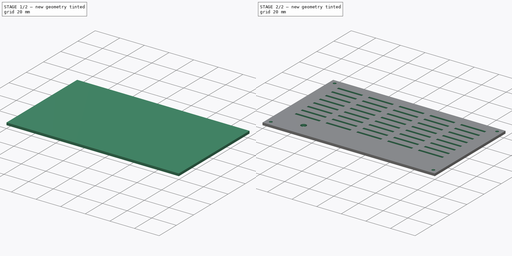
[diagram: build sequence overview — one tinted view per stage of 2, left to right]
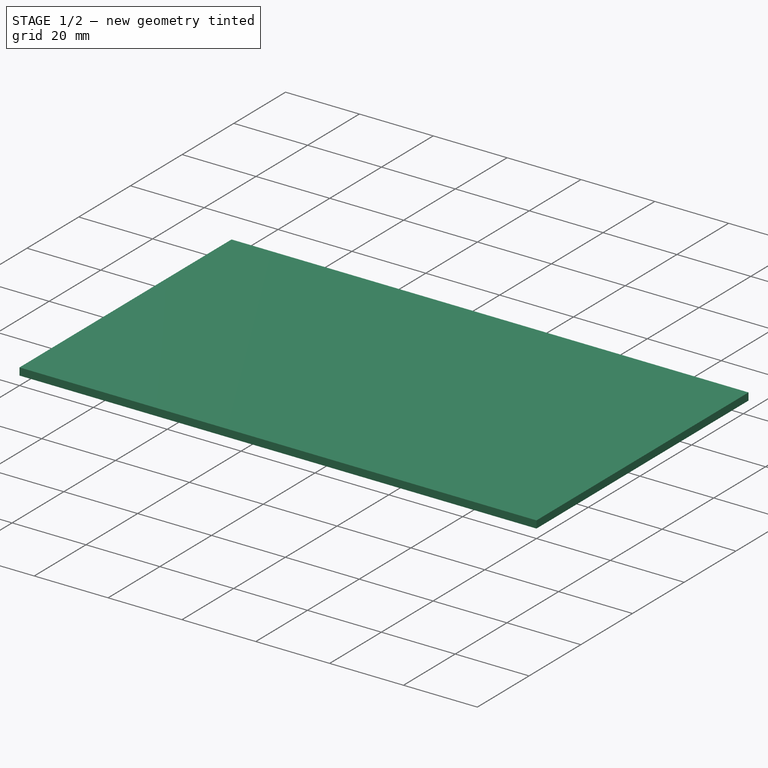
[diagram: stage 1 of 2 — iso view after this stage's code; geometry added in this stage tinted green]
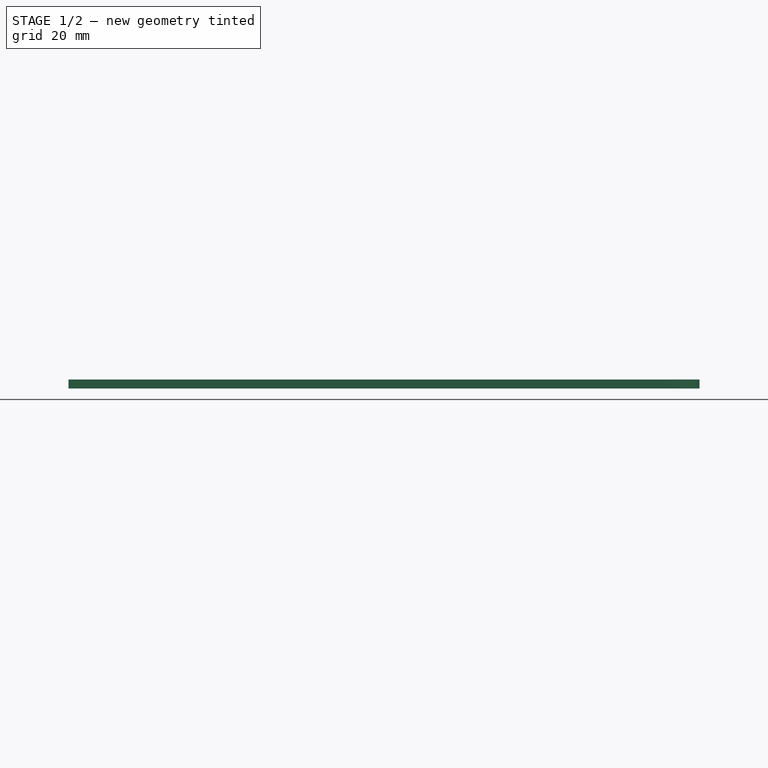
[diagram: stage 1 of 2 — front view after this stage's code; geometry added in this stage tinted green]
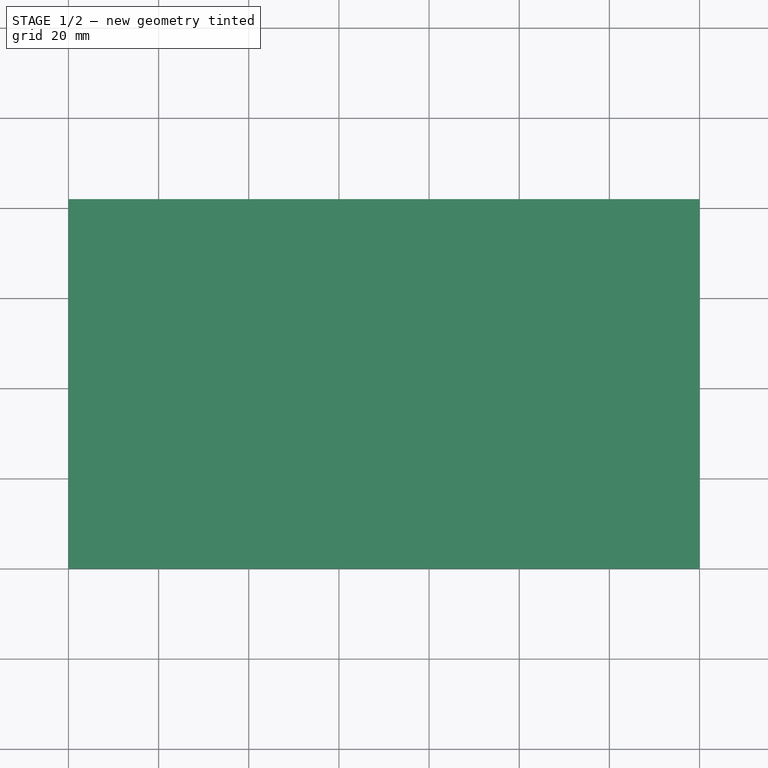
[diagram: stage 1 of 2 — top view after this stage's code; geometry added in this stage tinted green]
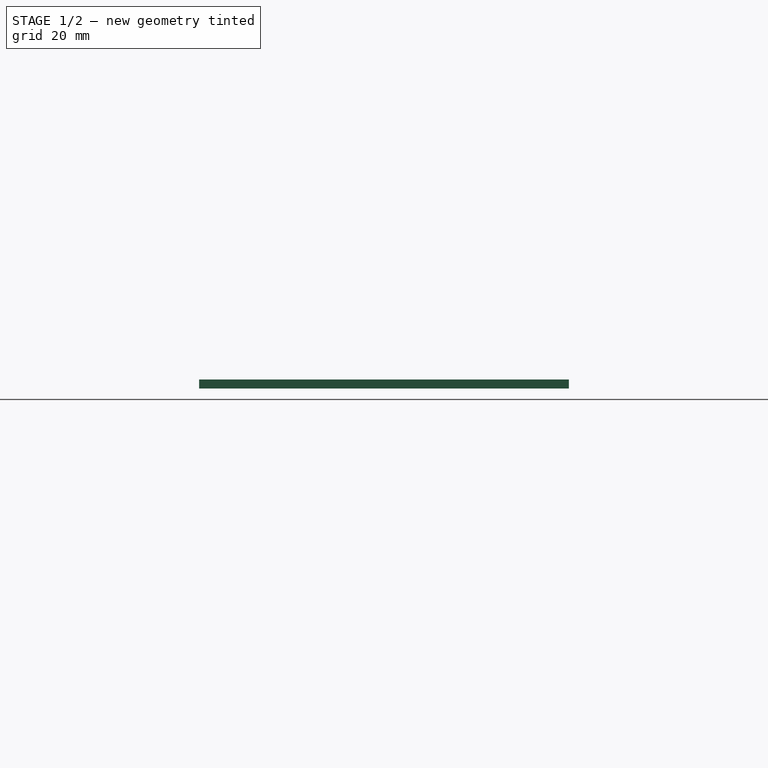
[diagram: stage 1 of 2 — right view after this stage's code; geometry added in this stage tinted green]
FCSTD DOCUMENT  (FreeCAD 0.19R24366 (Git))
Label: cover
License: All rights reserved
LicenseURL: http://en.wikipedia.org/wiki/All_rights_reserved
objects: Sketcher::SketchObject×2, PartDesign::Pad×1, PartDesign::Pocket×1, PartDesign::Body×1
note: 7 computed .brp shape members not serialized (recipe doc carries the construction recipe); baked Part::Feature solids carry a one-line shape summary decoded from their .brp

FEATURE [Sketcher::SketchObject] Sketch
  FullyConstrained = true
  MapMode = 5
  Support = -> [XY_Plane]
  sketch-geometry (4):
    g0: LineSegment StartX=0 StartY=0 StartZ=0 EndX=140 EndY=0 EndZ=0
    g1: LineSegment StartX=140 StartY=0 StartZ=0 EndX=140 EndY=82 EndZ=0
    g2: LineSegment StartX=140 StartY=82 StartZ=0 EndX=0 EndY=82 EndZ=0
    g3: LineSegment StartX=0 StartY=82 StartZ=0 EndX=0 EndY=0 EndZ=0
  constraints (11):
    c: Coincident(g0,g1)
    c: Coincident(g1,g2)
    c: Coincident(g2,g3)
    c: Coincident(g3,g0)
    c: Horizontal(g0)
    c: Horizontal(g2)
    c: Vertical(g1)
    c: Vertical(g3)
    c: Coincident(g0,g-1)
    c: DistanceX(g2,g2) = 140
    c: DistanceY(g3,g3) = 82
FEATURE [PartDesign::Pad] Pad
  Direction = (1,1,1)
  Length = 2
  Length2 = 100
  Profile = -> Sketch
  Type = 0
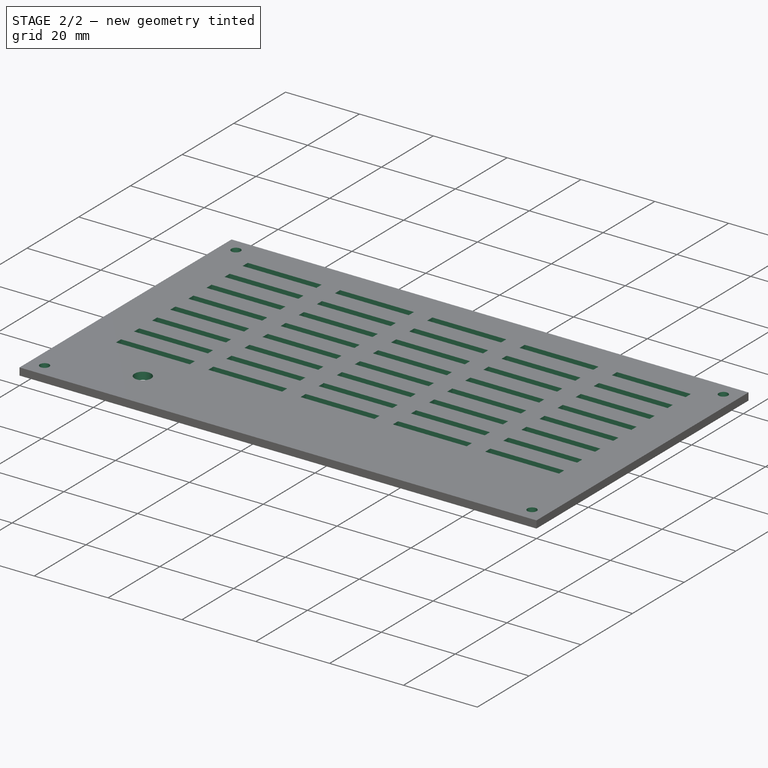
[diagram: stage 2 of 2 — iso view after this stage's code; geometry added in this stage tinted green]
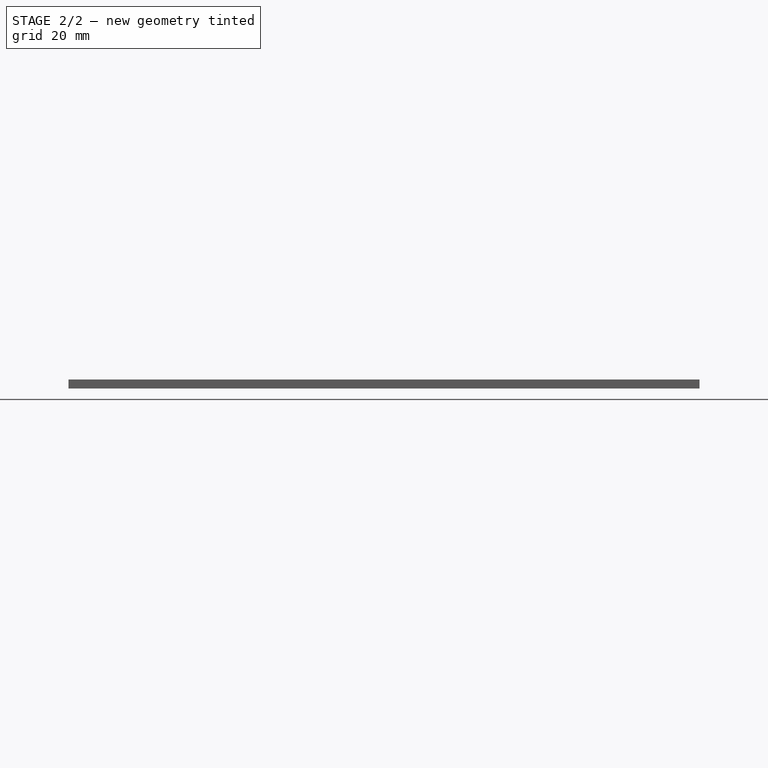
[diagram: stage 2 of 2 — front view after this stage's code; geometry added in this stage tinted green]
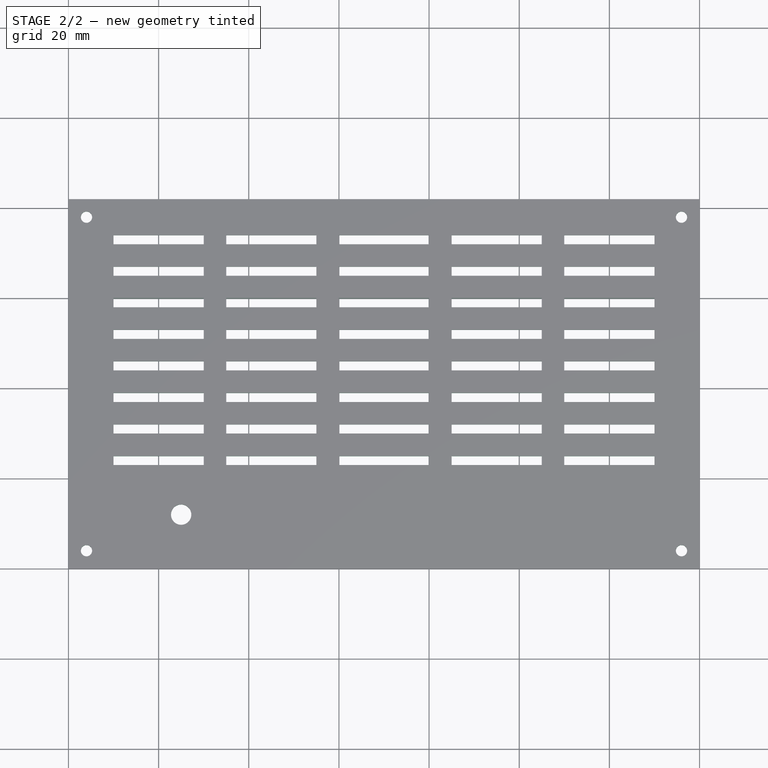
[diagram: stage 2 of 2 — top view after this stage's code; geometry added in this stage tinted green]
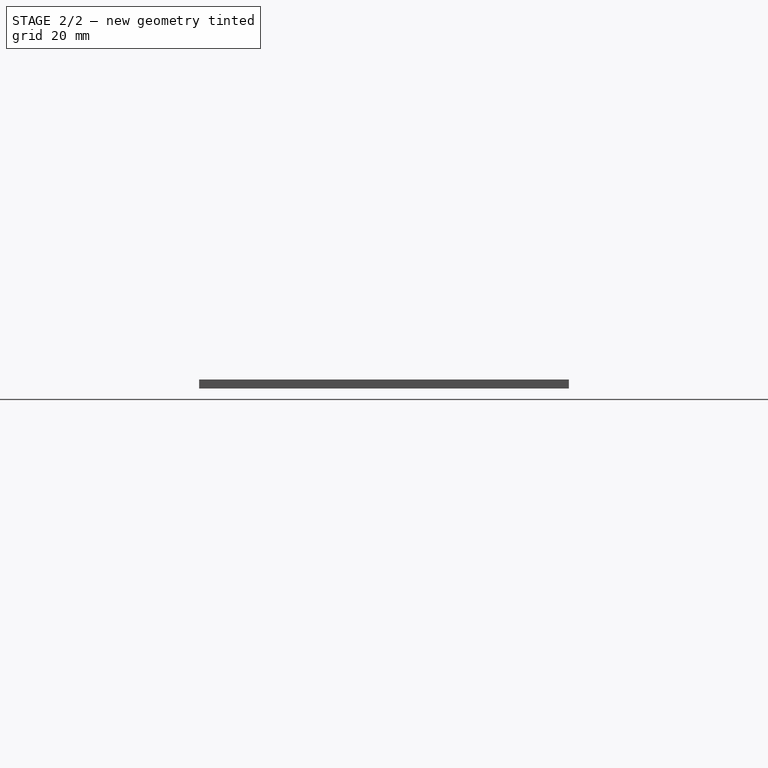
[diagram: stage 2 of 2 — right view after this stage's code; geometry added in this stage tinted green]
FEATURE [Sketcher::SketchObject] Sketch001
  ExternalGeometry = -> [Pad]
  FullyConstrained = true
  MapMode = 5
  Placement = pos=(0,0,2) rot=(0,0,1;0rad)
  Support = -> [Pad]
  sketch-geometry (204):
    g0: Circle CenterX=4 CenterY=78 CenterZ=0 NormalX=0 NormalY=0 NormalZ=1 AngleXU=0 Radius=1.25
    g1: Circle CenterX=136 CenterY=78 CenterZ=0 NormalX=0 NormalY=0 NormalZ=1 AngleXU=0 Radius=1.25
    g2: Circle CenterX=136 CenterY=4 CenterZ=0 NormalX=0 NormalY=0 NormalZ=1 AngleXU=0 Radius=1.25
    g3: Circle CenterX=4 CenterY=4 CenterZ=0 NormalX=0 NormalY=0 NormalZ=1 AngleXU=0 Radius=1.25
    g4: Circle CenterX=25 CenterY=12 CenterZ=0 NormalX=0 NormalY=0 NormalZ=1 AngleXU=0 Radius=2.25
    g5: LineSegment StartX=10 StartY=74 StartZ=0 EndX=30 EndY=74 EndZ=0
    g6: LineSegment StartX=30 StartY=74 StartZ=0 EndX=30 EndY=72 EndZ=0
    g7: LineSegment StartX=30 StartY=72 StartZ=0 EndX=10 EndY=72 EndZ=0
    g8: LineSegment StartX=10 StartY=72 StartZ=0 EndX=10 EndY=74 EndZ=0
    g9: LineSegment StartX=35 StartY=74 StartZ=0 EndX=55 EndY=74 EndZ=0
    g10: LineSegment StartX=55 StartY=74 StartZ=0 EndX=55 EndY=72 EndZ=0
    g11: LineSegment StartX=55 StartY=72 StartZ=0 EndX=35 EndY=72 EndZ=0
    g12: LineSegment StartX=35 StartY=72 StartZ=0 EndX=35 EndY=74 EndZ=0
    g13: LineSegment StartX=10 StartY=74 StartZ=0 EndX=35 EndY=74 EndZ=0
    g14: LineSegment StartX=60 StartY=74 StartZ=0 EndX=80 EndY=74 EndZ=0
    g15: LineSegment StartX=80 StartY=74 StartZ=0 EndX=80 EndY=72 EndZ=0
    g16: LineSegment StartX=80 StartY=72 StartZ=0 EndX=60 EndY=72 EndZ=0
    g17: LineSegment StartX=60 StartY=72 StartZ=0 EndX=60 EndY=74 EndZ=0
    g18: LineSegment StartX=35 StartY=74 StartZ=0 EndX=60 EndY=74 EndZ=0
    g19: LineSegment StartX=85 StartY=74 StartZ=0 EndX=105 EndY=74 EndZ=0
    g20: LineSegment StartX=105 StartY=74 StartZ=0 EndX=105 EndY=72 EndZ=0
    g21: LineSegment StartX=105 StartY=72 StartZ=0 EndX=85 EndY=72 EndZ=0
    g22: LineSegment StartX=85 StartY=72 StartZ=0 EndX=85 EndY=74 EndZ=0
    g23: LineSegment StartX=60 StartY=74 StartZ=0 EndX=85 EndY=74 EndZ=0
    g24: LineSegment StartX=110 StartY=74 StartZ=0 EndX=130 EndY=74 EndZ=0
    g25: LineSegment StartX=130 StartY=74 StartZ=0 EndX=130 EndY=72 EndZ=0
    g26: LineSegment StartX=130 StartY=72 StartZ=0 EndX=110 EndY=72 EndZ=0
    g27: LineSegment StartX=110 StartY=72 StartZ=0 EndX=110 EndY=74 EndZ=0
    g28: LineSegment StartX=85 StartY=74 StartZ=0 EndX=110 EndY=74 EndZ=0
    g29: LineSegment StartX=10 StartY=67 StartZ=0 EndX=30 EndY=67 EndZ=0
    g30: LineSegment StartX=30 StartY=67 StartZ=0 EndX=30 EndY=65 EndZ=0
    g31: LineSegment StartX=30 StartY=65 StartZ=0 EndX=10 EndY=65 EndZ=0
    g32: LineSegment StartX=10 StartY=65 StartZ=0 EndX=10 EndY=67 EndZ=0
    g33: LineSegment StartX=10 StartY=74 StartZ=0 EndX=10 EndY=67 EndZ=0
    g34: LineSegment StartX=35 StartY=67 StartZ=0 EndX=55 EndY=67 EndZ=0
    g35: LineSegment StartX=55 StartY=67 StartZ=0 EndX=55 EndY=65 EndZ=0
    g36: LineSegment StartX=55 StartY=65 StartZ=0 EndX=35 EndY=65 EndZ=0
    g37: LineSegment StartX=35 StartY=65 StartZ=0 EndX=35 EndY=67 EndZ=0
    g38: LineSegment StartX=10 StartY=67 StartZ=0 EndX=35 EndY=67 EndZ=0
    g39: LineSegment StartX=60 StartY=67 StartZ=0 EndX=80 EndY=67 EndZ=0
    g40: LineSegment StartX=80 StartY=67 StartZ=0 EndX=80 EndY=65 EndZ=0
    g41: LineSegment StartX=80 StartY=65 StartZ=0 EndX=60 EndY=65 EndZ=0
    g42: LineSegment StartX=60 StartY=65 StartZ=0 EndX=60 EndY=67 EndZ=0
    g43: LineSegment StartX=35 StartY=67 StartZ=0 EndX=60 EndY=67 EndZ=0
    g44: LineSegment StartX=85 StartY=67 StartZ=0 EndX=105 EndY=67 EndZ=0
    g45: LineSegment StartX=105 StartY=67 StartZ=0 EndX=105 EndY=65 EndZ=0
    g46: LineSegment StartX=105 StartY=65 StartZ=0 EndX=85 EndY=65 EndZ=0
    g47: LineSegment StartX=85 StartY=65 StartZ=0 EndX=85 EndY=67 EndZ=0
    g48: LineSegment StartX=60 StartY=67 StartZ=0 EndX=85 EndY=67 EndZ=0
    g49: LineSegment StartX=110 StartY=67 StartZ=0 EndX=130 EndY=67 EndZ=0
    g50: LineSegment StartX=130 StartY=67 StartZ=0 EndX=130 EndY=65 EndZ=0
    g51: LineSegment StartX=130 StartY=65 StartZ=0 EndX=110 EndY=65 EndZ=0
    g52: LineSegment StartX=110 StartY=65 StartZ=0 EndX=110 EndY=67 EndZ=0
    g53: LineSegment StartX=85 StartY=67 StartZ=0 EndX=110 EndY=67 EndZ=0
    g54: LineSegment StartX=10 StartY=60 StartZ=0 EndX=30 EndY=60 EndZ=0
    g55: LineSegment StartX=30 StartY=60 StartZ=0 EndX=30 EndY=58 EndZ=0
    g56: LineSegment StartX=30 StartY=58 StartZ=0 EndX=10 EndY=58 EndZ=0
    g57: LineSegment StartX=10 StartY=58 StartZ=0 EndX=10 EndY=60 EndZ=0
    g58: LineSegment StartX=10 StartY=67 StartZ=0 EndX=10 EndY=60 EndZ=0
    g59: LineSegment StartX=35 StartY=60 StartZ=0 EndX=55 EndY=60 EndZ=0
    g60: LineSegment StartX=55 StartY=60 StartZ=0 EndX=55 EndY=58 EndZ=0
    g61: LineSegment StartX=55 StartY=58 StartZ=0 EndX=35 EndY=58 EndZ=0
    g62: LineSegment StartX=35 StartY=58 StartZ=0 EndX=35 EndY=60 EndZ=0
    g63: LineSegment StartX=10 StartY=60 StartZ=0 EndX=35 EndY=60 EndZ=0
    g64: LineSegment StartX=60 StartY=60 StartZ=0 EndX=80 EndY=60 EndZ=0
    g65: LineSegment StartX=80 StartY=60 StartZ=0 EndX=80 EndY=58 EndZ=0
    g66: LineSegment StartX=80 StartY=58 StartZ=0 EndX=60 EndY=58 EndZ=0
    g67: LineSegment StartX=60 StartY=58 StartZ=0 EndX=60 EndY=60 EndZ=0
    g68: LineSegment StartX=35 StartY=60 StartZ=0 EndX=60 EndY=60 EndZ=0
    g69: LineSegment StartX=85 StartY=60 StartZ=0 EndX=105 EndY=60 EndZ=0
    g70: LineSegment StartX=105 StartY=60 StartZ=0 EndX=105 EndY=58 EndZ=0
    g71: LineSegment StartX=105 StartY=58 StartZ=0 EndX=85 EndY=58 EndZ=0
    g72: LineSegment StartX=85 StartY=58 StartZ=0 EndX=85 EndY=60 EndZ=0
    g73: LineSegment StartX=60 StartY=60 StartZ=0 EndX=85 EndY=60 EndZ=0
    g74: LineSegment StartX=110 StartY=60 StartZ=0 EndX=130 EndY=60 EndZ=0
    g75: LineSegment StartX=130 StartY=60 StartZ=0 EndX=130 EndY=58 EndZ=0
    g76: LineSegment StartX=130 StartY=58 StartZ=0 EndX=110 EndY=58 EndZ=0
    g77: LineSegment StartX=110 StartY=58 StartZ=0 EndX=110 EndY=60 EndZ=0
    g78: LineSegment StartX=85 StartY=60 StartZ=0 EndX=110 EndY=60 EndZ=0
    g79: LineSegment StartX=10 StartY=53 StartZ=0 EndX=30 EndY=53 EndZ=0
    g80: LineSegment StartX=30 StartY=53 StartZ=0 EndX=30 EndY=51 EndZ=0
    g81: LineSegment StartX=30 StartY=51 StartZ=0 EndX=10 EndY=51 EndZ=0
    g82: LineSegment StartX=10 StartY=51 StartZ=0 EndX=10 EndY=53 EndZ=0
    g83: LineSegment StartX=10 StartY=60 StartZ=0 EndX=10 EndY=53 EndZ=0
    g84: LineSegment StartX=35 StartY=53 StartZ=0 EndX=55 EndY=53 EndZ=0
    g85: LineSegment StartX=55 StartY=53 StartZ=0 EndX=55 EndY=51 EndZ=0
    g86: LineSegment StartX=55 StartY=51 StartZ=0 EndX=35 EndY=51 EndZ=0
    g87: LineSegment StartX=35 StartY=51 StartZ=0 EndX=35 EndY=53 EndZ=0
    g88: LineSegment StartX=10 StartY=53 StartZ=0 EndX=35 EndY=53 EndZ=0
    g89: LineSegment StartX=60 StartY=53 StartZ=0 EndX=80 EndY=53 EndZ=0
    g90: LineSegment StartX=80 StartY=53 StartZ=0 EndX=80 EndY=51 EndZ=0
    g91: LineSegment StartX=80 StartY=51 StartZ=0 EndX=60 EndY=51 EndZ=0
    g92: LineSegment StartX=60 StartY=51 StartZ=0 EndX=60 EndY=53 EndZ=0
    g93: LineSegment StartX=35 StartY=53 StartZ=0 EndX=60 EndY=53 EndZ=0
    g94: LineSegment StartX=85 StartY=53 StartZ=0 EndX=105 EndY=53 EndZ=0
    g95: LineSegment StartX=105 StartY=53 StartZ=0 EndX=105 EndY=51 EndZ=0
    g96: LineSegment StartX=105 StartY=51 StartZ=0 EndX=85 EndY=51 EndZ=0
    g97: LineSegment StartX=85 StartY=51 StartZ=0 EndX=85 EndY=53 EndZ=0
    g98: LineSegment StartX=60 StartY=53 StartZ=0 EndX=85 EndY=53 EndZ=0
    g99: LineSegment StartX=110 StartY=53 StartZ=0 EndX=130 EndY=53 EndZ=0
    g100: LineSegment StartX=130 StartY=53 StartZ=0 EndX=130 EndY=51 EndZ=0
    g101: LineSegment StartX=130 StartY=51 StartZ=0 EndX=110 EndY=51 EndZ=0
    g102: LineSegment StartX=110 StartY=51 StartZ=0 EndX=110 EndY=53 EndZ=0
    g103: LineSegment StartX=85 StartY=53 StartZ=0 EndX=110 EndY=53 EndZ=0
    g104: LineSegment StartX=10 StartY=46 StartZ=0 EndX=30 EndY=46 EndZ=0
    g105: LineSegment StartX=30 StartY=46 StartZ=0 EndX=30 EndY=44 EndZ=0
    g106: LineSegment StartX=30 StartY=44 StartZ=0 EndX=10 EndY=44 EndZ=0
    g107: LineSegment StartX=10 StartY=44 StartZ=0 EndX=10 EndY=46 EndZ=0
    g108: LineSegment StartX=10 StartY=53 StartZ=0 EndX=10 EndY=46 EndZ=0
    g109: LineSegment StartX=35 StartY=46 StartZ=0 EndX=55 EndY=46 EndZ=0
    g110: LineSegment StartX=55 StartY=46 StartZ=0 EndX=55 EndY=44 EndZ=0
    g111: LineSegment StartX=55 StartY=44 StartZ=0 EndX=35 EndY=44 EndZ=0
    g112: LineSegment StartX=35 StartY=44 StartZ=0 EndX=35 EndY=46 EndZ=0
    g113: LineSegment StartX=10 StartY=46 StartZ=0 EndX=35 EndY=46 EndZ=0
    g114: LineSegment StartX=60 StartY=46 StartZ=0 EndX=80 EndY=46 EndZ=0
    g115: LineSegment StartX=80 StartY=46 StartZ=0 EndX=80 EndY=44 EndZ=0
    g116: LineSegment StartX=80 StartY=44 StartZ=0 EndX=60 EndY=44 EndZ=0
    g117: LineSegment StartX=60 StartY=44 StartZ=0 EndX=60 EndY=46 EndZ=0
    g118: LineSegment StartX=35 StartY=46 StartZ=0 EndX=60 EndY=46 EndZ=0
    g119: LineSegment StartX=85 StartY=46 StartZ=0 EndX=105 EndY=46 EndZ=0
    g120: LineSegment StartX=105 StartY=46 StartZ=0 EndX=105 EndY=44 EndZ=0
    g121: LineSegment StartX=105 StartY=44 StartZ=0 EndX=85 EndY=44 EndZ=0
    g122: LineSegment StartX=85 StartY=44 StartZ=0 EndX=85 EndY=46 EndZ=0
    g123: LineSegment StartX=60 StartY=46 StartZ=0 EndX=85 EndY=46 EndZ=0
    g124: LineSegment StartX=110 StartY=46 StartZ=0 EndX=130 EndY=46 EndZ=0
    g125: LineSegment StartX=130 StartY=46 StartZ=0 EndX=130 EndY=44 EndZ=0
    g126: LineSegment StartX=130 StartY=44 StartZ=0 EndX=110 EndY=44 EndZ=0
    g127: LineSegment StartX=110 StartY=44 StartZ=0 EndX=110 EndY=46 EndZ=0
    g128: LineSegment StartX=85 StartY=46 StartZ=0 EndX=110 EndY=46 EndZ=0
    g129: LineSegment StartX=10 StartY=39 StartZ=0 EndX=30 EndY=39 EndZ=0
    g130: LineSegment StartX=30 StartY=39 StartZ=0 EndX=30 EndY=37 EndZ=0
    g131: LineSegment StartX=30 StartY=37 StartZ=0 EndX=10 EndY=37 EndZ=0
    g132: LineSegment StartX=10 StartY=37 StartZ=0 EndX=10 EndY=39 EndZ=0
    g133: LineSegment StartX=10 StartY=46 StartZ=0 EndX=10 EndY=39 EndZ=0
    g134: LineSegment StartX=35 StartY=39 StartZ=0 EndX=55 EndY=39 EndZ=0
    g135: LineSegment StartX=55 StartY=39 StartZ=0 EndX=55 EndY=37 EndZ=0
    g136: LineSegment StartX=55 StartY=37 StartZ=0 EndX=35 EndY=37 EndZ=0
    g137: LineSegment StartX=35 StartY=37 StartZ=0 EndX=35 EndY=39 EndZ=0
    g138: LineSegment StartX=10 StartY=39 StartZ=0 EndX=35 EndY=39 EndZ=0
    g139: LineSegment StartX=60 StartY=39 StartZ=0 EndX=80 EndY=39 EndZ=0
    g140: LineSegment StartX=80 StartY=39 StartZ=0 EndX=80 EndY=37 EndZ=0
    g141: LineSegment StartX=80 StartY=37 StartZ=0 EndX=60 EndY=37 EndZ=0
    g142: LineSegment StartX=60 StartY=37 StartZ=0 EndX=60 EndY=39 EndZ=0
    g143: LineSegment StartX=35 StartY=39 StartZ=0 EndX=60 EndY=39 EndZ=0
    g144: LineSegment StartX=85 StartY=39 StartZ=0 EndX=105 EndY=39 EndZ=0
    g145: LineSegment StartX=105 StartY=39 StartZ=0 EndX=105 EndY=37 EndZ=0
    g146: LineSegment StartX=105 StartY=37 StartZ=0 EndX=85 EndY=37 EndZ=0
    g147: LineSegment StartX=85 StartY=37 StartZ=0 EndX=85 EndY=39 EndZ=0
    g148: LineSegment StartX=60 StartY=39 StartZ=0 EndX=85 EndY=39 EndZ=0
    g149: LineSegment StartX=110 StartY=39 StartZ=0 EndX=130 EndY=39 EndZ=0
    g150: LineSegment StartX=130 StartY=39 StartZ=0 EndX=130 EndY=37 EndZ=0
    g151: LineSegment StartX=130 StartY=37 StartZ=0 EndX=110 EndY=37 EndZ=0
    g152: LineSegment StartX=110 StartY=37 StartZ=0 EndX=110 EndY=39 EndZ=0
    g153: LineSegment StartX=85 StartY=39 StartZ=0 EndX=110 EndY=39 EndZ=0
    g154: LineSegment StartX=10 StartY=32 StartZ=0 EndX=30 EndY=32 EndZ=0
    g155: LineSegment StartX=30 StartY=32 StartZ=0 EndX=30 EndY=30 EndZ=0
    g156: LineSegment StartX=30 StartY=30 StartZ=0 EndX=10 EndY=30 EndZ=0
    g157: LineSegment StartX=10 StartY=30 StartZ=0 EndX=10 EndY=32 EndZ=0
    g158: LineSegment StartX=10 StartY=39 StartZ=0 EndX=10 EndY=32 EndZ=0
    g159: LineSegment StartX=35 StartY=32 StartZ=0 EndX=55 EndY=32 EndZ=0
    g160: LineSegment StartX=55 StartY=32 StartZ=0 EndX=55 EndY=30 EndZ=0
    g161: LineSegment StartX=55 StartY=30 StartZ=0 EndX=35 EndY=30 EndZ=0
    g162: LineSegment StartX=35 StartY=30 StartZ=0 EndX=35 EndY=32 EndZ=0
    g163: LineSegment StartX=10 StartY=32 StartZ=0 EndX=35 EndY=32 EndZ=0
    g164: LineSegment StartX=60 StartY=32 StartZ=0 EndX=80 EndY=32 EndZ=0
    g165: LineSegment StartX=80 StartY=32 StartZ=0 EndX=80 EndY=30 EndZ=0
    g166: LineSegment StartX=80 StartY=30 StartZ=0 EndX=60 EndY=30 EndZ=0
    g167: LineSegment StartX=60 StartY=30 StartZ=0 EndX=60 EndY=32 EndZ=0
    g168: LineSegment StartX=35 StartY=32 StartZ=0 EndX=60 EndY=32 EndZ=0
    g169: LineSegment StartX=85 StartY=32 StartZ=0 EndX=105 EndY=32 EndZ=0
    g170: LineSegment StartX=105 StartY=32 StartZ=0 EndX=105 EndY=30 EndZ=0
    g171: LineSegment StartX=105 StartY=30 StartZ=0 EndX=85 EndY=30 EndZ=0
    g172: LineSegment StartX=85 StartY=30 StartZ=0 EndX=85 EndY=32 EndZ=0
    g173: LineSegment StartX=60 StartY=32 StartZ=0 EndX=85 EndY=32 EndZ=0
    g174: LineSegment StartX=110 StartY=32 StartZ=0 EndX=130 EndY=32 EndZ=0
    g175: LineSegment StartX=130 StartY=32 StartZ=0 EndX=130 EndY=30 EndZ=0
    g176: LineSegment StartX=130 StartY=30 StartZ=0 EndX=110 EndY=30 EndZ=0
    g177: LineSegment StartX=110 StartY=30 StartZ=0 EndX=110 EndY=32 EndZ=0
    g178: LineSegment StartX=85 StartY=32 StartZ=0 EndX=110 EndY=32 EndZ=0
    g179: LineSegment StartX=10 StartY=25 StartZ=0 EndX=30 EndY=25 EndZ=0
    g180: LineSegment StartX=30 StartY=25 StartZ=0 EndX=30 EndY=23 EndZ=0
    g181: LineSegment StartX=30 StartY=23 StartZ=0 EndX=10 EndY=23 EndZ=0
    g182: LineSegment StartX=10 StartY=23 StartZ=0 EndX=10 EndY=25 EndZ=0
    g183: LineSegment StartX=10 StartY=32 StartZ=0 EndX=10 EndY=25 EndZ=0
    g184: LineSegment StartX=35 StartY=25 StartZ=0 EndX=55 EndY=25 EndZ=0
    g185: LineSegment StartX=55 StartY=25 StartZ=0 EndX=55 EndY=23 EndZ=0
    g186: LineSegment StartX=55 StartY=23 StartZ=0 EndX=35 EndY=23 EndZ=0
    g187: LineSegment StartX=35 StartY=23 StartZ=0 EndX=35 EndY=25 EndZ=0
    g188: LineSegment StartX=10 StartY=25 StartZ=0 EndX=35 EndY=25 EndZ=0
    g189: LineSegment StartX=60 StartY=25 StartZ=0 EndX=80 EndY=25 EndZ=0
    g190: LineSegment StartX=80 StartY=25 StartZ=0 EndX=80 EndY=23 EndZ=0
    g191: LineSegment StartX=80 StartY=23 StartZ=0 EndX=60 EndY=23 EndZ=0
    g192: LineSegment StartX=60 StartY=23 StartZ=0 EndX=60 EndY=25 EndZ=0
    g193: LineSegment StartX=35 StartY=25 StartZ=0 EndX=60 EndY=25 EndZ=0
    g194: LineSegment StartX=85 StartY=25 StartZ=0 EndX=105 EndY=25 EndZ=0
    g195: LineSegment StartX=105 StartY=25 StartZ=0 EndX=105 EndY=23 EndZ=0
    g196: LineSegment StartX=105 StartY=23 StartZ=0 EndX=85 EndY=23 EndZ=0
    g197: LineSegment StartX=85 StartY=23 StartZ=0 EndX=85 EndY=25 EndZ=0
    g198: LineSegment StartX=60 StartY=25 StartZ=0 EndX=85 EndY=25 EndZ=0
    g199: LineSegment StartX=110 StartY=25 StartZ=0 EndX=130 EndY=25 EndZ=0
    g200: LineSegment StartX=130 StartY=25 StartZ=0 EndX=130 EndY=23 EndZ=0
    g201: LineSegment StartX=130 StartY=23 StartZ=0 EndX=110 EndY=23 EndZ=0
    g202: LineSegment StartX=110 StartY=23 StartZ=0 EndX=110 EndY=25 EndZ=0
    g203: LineSegment StartX=85 StartY=25 StartZ=0 EndX=110 EndY=25 EndZ=0
  constraints (573):
    c: DistanceX(g-1,g3) = 4
    c: DistanceY(g-1,g3) = 4
    c: DistanceY(g-5,g2) = 4
    c: DistanceX(g2,g-5) = 4
    c: DistanceY(g0,g-3) = 4
    c: DistanceX(g-3,g0) = 4
    c: DistanceX(g1,g-4) = 4
    c: DistanceY(g1,g-4) = 4
    c: Equal(g0,g3)
    c: Equal(g0,g2)
    c: Equal(g0,g1)
    c: Diameter(g0) = 2.5
    c: DistanceX(g-1,g4) = 25
    c: DistanceY(g-1,g4) = 12
    c: Diameter(g4) = 4.5
    c: Coincident(g5,g6)
    c: Coincident(g6,g7)
    c: Coincident(g7,g8)
    c: Coincident(g8,g5)
    c: Horizontal(g5)
    c: Horizontal(g7)
    c: Vertical(g6)
    c: Vertical(g8)
    c: DistanceX(g5,g5) = 20
    c: DistanceY(g6,g6) = 2
    c: Coincident(g9,g10)
    c: Coincident(g10,g11)
    c: Coincident(g11,g12)
    c: Coincident(g12,g9)
    c: Horizontal(g9)
    c: Horizontal(g11)
    c: Vertical(g10)
    c: Vertical(g12)
    c: DistanceX(g9,g9) = 20
    c: DistanceY(g10,g10) = 2
    c: Coincident(g5,g13)
    c: Coincident(g9,g13)
    c: Distance(g13) = 25
    c: Angle(g13) = 0
    c: Coincident(g14,g15)
    c: Coincident(g15,g16)
    c: Coincident(g16,g17)
    c: Coincident(g17,g14)
    c: Horizontal(g14)
    c: Horizontal(g16)
    c: Vertical(g15)
    c: Vertical(g17)
    c: DistanceX(g14,g14) = 20
    c: DistanceY(g15,g15) = 2
    c: Coincident(g9,g18)
    c: Coincident(g14,g18)
    c: Equal(g13,g18)
    c: Parallel(g18,g13)
    c: Coincident(g19,g20)
    c: Coincident(g20,g21)
    c: Coincident(g21,g22)
    c: Coincident(g22,g19)
    c: Horizontal(g19)
    c: Horizontal(g21)
    c: Vertical(g20)
    c: Vertical(g22)
    c: DistanceX(g19,g19) = 20
    c: DistanceY(g20,g20) = 2
    c: Coincident(g14,g23)
    c: Coincident(g19,g23)
    c: Equal(g13,g23)
    c: Parallel(g23,g13)
    c: Coincident(g24,g25)
    c: Coincident(g25,g26)
    c: Coincident(g26,g27)
    c: Coincident(g27,g24)
    c: Horizontal(g24)
    c: Horizontal(g26)
    c: Vertical(g25)
    c: Vertical(g27)
    c: DistanceX(g24,g24) = 20
    c: DistanceY(g25,g25) = 2
    c: Coincident(g19,g28)
    c: Coincident(g24,g28)
    c: Equal(g13,g28)
    c: Parallel(g28,g13)
    c: Coincident(g29,g30)
    c: Coincident(g30,g31)
    c: Coincident(g31,g32)
    c: Coincident(g32,g29)
    c: Horizontal(g29)
    c: Horizontal(g31)
    c: Vertical(g30)
    c: Vertical(g32)
    c: DistanceX(g29,g29) = 20
    c: DistanceY(g30,g30) = 2
    c: Coincident(g5,g33)
    c: Coincident(g29,g33)
    c: Distance(g33) = 7
    c: Perpendicular(g33,g13)
    c: Coincident(g34,g35)
    c: Coincident(g35,g36)
    c: Coincident(g36,g37)
    c: Coincident(g37,g34)
    c: Horizontal(g34)
    c: Horizontal(g36)
    c: Vertical(g35)
    c: Vertical(g37)
    c: DistanceX(g34,g34) = 20
    c: DistanceY(g35,g35) = 2
    c: Coincident(g29,g38)
    c: Coincident(g34,g38)
    c: Equal(g13,g38)
    c: Parallel(g38,g13)
    c: Coincident(g39,g40)
    c: Coincident(g40,g41)
    c: Coincident(g41,g42)
    c: Coincident(g42,g39)
    c: Horizontal(g39)
    c: Horizontal(g41)
    c: Vertical(g40)
    c: Vertical(g42)
    c: DistanceX(g39,g39) = 20
    c: DistanceY(g40,g40) = 2
    c: Coincident(g34,g43)
    c: Coincident(g39,g43)
    c: Equal(g13,g43)
    c: Parallel(g43,g13)
    c: Coincident(g44,g45)
    c: Coincident(g45,g46)
    c: Coincident(g46,g47)
    c: Coincident(g47,g44)
    c: Horizontal(g44)
    c: Horizontal(g46)
    c: Vertical(g45)
    c: Vertical(g47)
    c: DistanceX(g44,g44) = 20
    c: DistanceY(g45,g45) = 2
    c: Coincident(g39,g48)
    c: Coincident(g44,g48)
    c: Equal(g13,g48)
    c: Parallel(g48,g13)
    c: Coincident(g49,g50)
    c: Coincident(g50,g51)
    c: Coincident(g51,g52)
    c: Coincident(g52,g49)
    c: Horizontal(g49)
    c: Horizontal(g51)
    c: Vertical(g50)
    c: Vertical(g52)
    c: DistanceX(g49,g49) = 20
    c: DistanceY(g50,g50) = 2
    c: Coincident(g44,g53)
    c: Coincident(g49,g53)
    c: Equal(g13,g53)
    c: Parallel(g53,g13)
    c: Coincident(g54,g55)
    c: Coincident(g55,g56)
    c: Coincident(g56,g57)
    c: Coincident(g57,g54)
    c: Horizontal(g54)
    c: Horizontal(g56)
    c: Vertical(g55)
    c: Vertical(g57)
    c: DistanceX(g54,g54) = 20
    c: DistanceY(g55,g55) = 2
    c: Coincident(g29,g58)
    c: Coincident(g54,g58)
    c: Equal(g33,g58)
    c: Perpendicular(g58,g13)
    c: Coincident(g59,g60)
    c: Coincident(g60,g61)
    c: Coincident(g61,g62)
    c: Coincident(g62,g59)
    c: Horizontal(g59)
    c: Horizontal(g61)
    c: Vertical(g60)
    c: Vertical(g62)
    c: DistanceX(g59,g59) = 20
    c: DistanceY(g60,g60) = 2
    c: Coincident(g54,g63)
    c: Coincident(g59,g63)
    c: Equal(g13,g63)
    c: Parallel(g63,g13)
    c: Coincident(g64,g65)
    c: Coincident(g65,g66)
    c: Coincident(g66,g67)
    c: Coincident(g67,g64)
    c: Horizontal(g64)
    c: Horizontal(g66)
    c: Vertical(g65)
    c: Vertical(g67)
    c: DistanceX(g64,g64) = 20
    c: DistanceY(g65,g65) = 2
    c: Coincident(g59,g68)
    c: Coincident(g64,g68)
    c: Equal(g13,g68)
    c: Parallel(g68,g13)
    c: Coincident(g69,g70)
    c: Coincident(g70,g71)
    c: Coincident(g71,g72)
    c: Coincident(g72,g69)
    c: Horizontal(g69)
    c: Horizontal(g71)
    c: Vertical(g70)
    c: Vertical(g72)
    c: DistanceX(g69,g69) = 20
    c: DistanceY(g70,g70) = 2
    c: Coincident(g64,g73)
    c: Coincident(g69,g73)
    c: Equal(g13,g73)
    c: Parallel(g73,g13)
    c: Coincident(g74,g75)
    c: Coincident(g75,g76)
    c: Coincident(g76,g77)
    c: Coincident(g77,g74)
    c: Horizontal(g74)
    c: Horizontal(g76)
    c: Vertical(g75)
    c: Vertical(g77)
    c: DistanceX(g74,g74) = 20
    c: DistanceY(g75,g75) = 2
    c: Coincident(g69,g78)
    c: Coincident(g74,g78)
    c: Equal(g13,g78)
    c: Parallel(g78,g13)
    c: Coincident(g79,g80)
    c: Coincident(g80,g81)
    c: Coincident(g81,g82)
    c: Coincident(g82,g79)
    c: Horizontal(g79)
    c: Horizontal(g81)
    c: Vertical(g80)
    c: Vertical(g82)
    c: DistanceX(g79,g79) = 20
    c: DistanceY(g80,g80) = 2
    c: Coincident(g54,g83)
    c: Coincident(g79,g83)
    c: Equal(g33,g83)
    c: Perpendicular(g83,g13)
    c: Coincident(g84,g85)
    c: Coincident(g85,g86)
    c: Coincident(g86,g87)
    c: Coincident(g87,g84)
    c: Horizontal(g84)
    c: Horizontal(g86)
    c: Vertical(g85)
    c: Vertical(g87)
    c: DistanceX(g84,g84) = 20
    c: DistanceY(g85,g85) = 2
    c: Coincident(g79,g88)
    c: Coincident(g84,g88)
    c: Equal(g13,g88)
    c: Parallel(g88,g13)
    c: Coincident(g89,g90)
    c: Coincident(g90,g91)
    c: Coincident(g91,g92)
    c: Coincident(g92,g89)
    c: Horizontal(g89)
    c: Horizontal(g91)
    c: Vertical(g90)
    c: Vertical(g92)
    c: DistanceX(g89,g89) = 20
    c: DistanceY(g90,g90) = 2
    c: Coincident(g84,g93)
    c: Coincident(g89,g93)
    c: Equal(g13,g93)
    c: Parallel(g93,g13)
    c: Coincident(g94,g95)
    c: Coincident(g95,g96)
    c: Coincident(g96,g97)
    c: Coincident(g97,g94)
    c: Horizontal(g94)
    c: Horizontal(g96)
    c: Vertical(g95)
    c: Vertical(g97)
    c: DistanceX(g94,g94) = 20
    c: DistanceY(g95,g95) = 2
    c: Coincident(g89,g98)
    c: Coincident(g94,g98)
    c: Equal(g13,g98)
    c: Parallel(g98,g13)
    c: Coincident(g99,g100)
    c: Coincident(g100,g101)
    c: Coincident(g101,g102)
    c: Coincident(g102,g99)
    c: Horizontal(g99)
    c: Horizontal(g101)
    c: Vertical(g100)
    c: Vertical(g102)
    c: DistanceX(g99,g99) = 20
    c: DistanceY(g100,g100) = 2
    c: Coincident(g94,g103)
    c: Coincident(g99,g103)
    c: Equal(g13,g103)
    c: Parallel(g103,g13)
    c: Coincident(g104,g105)
    c: Coincident(g105,g106)
    c: Coincident(g106,g107)
    c: Coincident(g107,g104)
    c: Horizontal(g104)
    c: Horizontal(g106)
    c: Vertical(g105)
    c: Vertical(g107)
    c: DistanceX(g104,g104) = 20
    c: DistanceY(g105,g105) = 2
    c: Coincident(g79,g108)
    c: Coincident(g104,g108)
    c: Equal(g33,g108)
    c: Perpendicular(g108,g13)
    c: Coincident(g109,g110)
    c: Coincident(g110,g111)
    c: Coincident(g111,g112)
    c: Coincident(g112,g109)
    c: Horizontal(g109)
    c: Horizontal(g111)
    c: Vertical(g110)
    c: Vertical(g112)
    c: DistanceX(g109,g109) = 20
    c: DistanceY(g110,g110) = 2
    c: Coincident(g104,g113)
    c: Coincident(g109,g113)
    c: Equal(g13,g113)
    c: Parallel(g113,g13)
    c: Coincident(g114,g115)
    c: Coincident(g115,g116)
    c: Coincident(g116,g117)
    c: Coincident(g117,g114)
    c: Horizontal(g114)
    c: Horizontal(g116)
    c: Vertical(g115)
    c: Vertical(g117)
    c: DistanceX(g114,g114) = 20
    c: DistanceY(g115,g115) = 2
    c: Coincident(g109,g118)
    c: Coincident(g114,g118)
    c: Equal(g13,g118)
    c: Parallel(g118,g13)
    c: Coincident(g119,g120)
    c: Coincident(g120,g121)
    c: Coincident(g121,g122)
    c: Coincident(g122,g119)
    c: Horizontal(g119)
    c: Horizontal(g121)
    c: Vertical(g120)
    c: Vertical(g122)
    c: DistanceX(g119,g119) = 20
    c: DistanceY(g120,g120) = 2
    c: Coincident(g114,g123)
    c: Coincident(g119,g123)
    c: Equal(g13,g123)
    c: Parallel(g123,g13)
    c: Coincident(g124,g125)
    c: Coincident(g125,g126)
    c: Coincident(g126,g127)
    c: Coincident(g127,g124)
    c: Horizontal(g124)
    c: Horizontal(g126)
    c: Vertical(g125)
    c: Vertical(g127)
    c: DistanceX(g124,g124) = 20
    c: DistanceY(g125,g125) = 2
    c: Coincident(g119,g128)
    c: Coincident(g124,g128)
    c: Equal(g13,g128)
    c: Parallel(g128,g13)
    c: Coincident(g129,g130)
    c: Coincident(g130,g131)
    c: Coincident(g131,g132)
    c: Coincident(g132,g129)
    c: Horizontal(g129)
    c: Horizontal(g131)
    c: Vertical(g130)
    c: Vertical(g132)
    c: DistanceX(g129,g129) = 20
    c: DistanceY(g130,g130) = 2
    c: Coincident(g104,g133)
    c: Coincident(g129,g133)
    c: Equal(g33,g133)
    c: Perpendicular(g133,g13)
    c: Coincident(g134,g135)
    c: Coincident(g135,g136)
    c: Coincident(g136,g137)
    c: Coincident(g137,g134)
    c: Horizontal(g134)
    c: Horizontal(g136)
    c: Vertical(g135)
    c: Vertical(g137)
    c: DistanceX(g134,g134) = 20
    c: DistanceY(g135,g135) = 2
    c: Coincident(g129,g138)
    c: Coincident(g134,g138)
    c: Equal(g13,g138)
    c: Parallel(g138,g13)
    c: Coincident(g139,g140)
    c: Coincident(g140,g141)
    c: Coincident(g141,g142)
    c: Coincident(g142,g139)
    c: Horizontal(g139)
    c: Horizontal(g141)
    c: Vertical(g140)
    c: Vertical(g142)
    c: DistanceX(g139,g139) = 20
    c: DistanceY(g140,g140) = 2
    c: Coincident(g134,g143)
    c: Coincident(g139,g143)
    c: Equal(g13,g143)
    c: Parallel(g143,g13)
    c: Coincident(g144,g145)
    c: Coincident(g145,g146)
    c: Coincident(g146,g147)
    c: Coincident(g147,g144)
    c: Horizontal(g144)
    c: Horizontal(g146)
    c: Vertical(g145)
    c: Vertical(g147)
    c: DistanceX(g144,g144) = 20
    c: DistanceY(g145,g145) = 2
    c: Coincident(g139,g148)
    c: Coincident(g144,g148)
    c: Equal(g13,g148)
    c: Parallel(g148,g13)
    c: Coincident(g149,g150)
    c: Coincident(g150,g151)
    c: Coincident(g151,g152)
    c: Coincident(g152,g149)
    c: Horizontal(g149)
    c: Horizontal(g151)
    c: Vertical(g150)
    c: Vertical(g152)
    c: DistanceX(g149,g149) = 20
    c: DistanceY(g150,g150) = 2
    c: Coincident(g144,g153)
    c: Coincident(g149,g153)
    c: Equal(g13,g153)
    c: Parallel(g153,g13)
    c: Coincident(g154,g155)
    c: Coincident(g155,g156)
    c: Coincident(g156,g157)
    c: Coincident(g157,g154)
    c: Horizontal(g154)
    c: Horizontal(g156)
    c: Vertical(g155)
    c: Vertical(g157)
    c: DistanceX(g154,g154) = 20
    c: DistanceY(g155,g155) = 2
    c: Coincident(g129,g158)
    c: Coincident(g154,g158)
    c: Equal(g33,g158)
    c: Perpendicular(g158,g13)
    c: Coincident(g159,g160)
    c: Coincident(g160,g161)
    c: Coincident(g161,g162)
    c: Coincident(g162,g159)
    c: Horizontal(g159)
    c: Horizontal(g161)
    c: Vertical(g160)
    c: Vertical(g162)
    c: DistanceX(g159,g159) = 20
    c: DistanceY(g160,g160) = 2
    c: Coincident(g154,g163)
    c: Coincident(g159,g163)
    c: Equal(g13,g163)
    c: Parallel(g163,g13)
    c: Coincident(g164,g165)
    c: Coincident(g165,g166)
    c: Coincident(g166,g167)
    c: Coincident(g167,g164)
    c: Horizontal(g164)
    c: Horizontal(g166)
    c: Vertical(g165)
    c: Vertical(g167)
    c: DistanceX(g164,g164) = 20
    c: DistanceY(g165,g165) = 2
    c: Coincident(g159,g168)
    c: Coincident(g164,g168)
    c: Equal(g13,g168)
    c: Parallel(g168,g13)
    c: Coincident(g169,g170)
    c: Coincident(g170,g171)
    c: Coincident(g171,g172)
    c: Coincident(g172,g169)
    c: Horizontal(g169)
    c: Horizontal(g171)
    c: Vertical(g170)
    c: Vertical(g172)
    c: DistanceX(g169,g169) = 20
    c: DistanceY(g170,g170) = 2
    c: Coincident(g164,g173)
    c: Coincident(g169,g173)
    c: Equal(g13,g173)
    c: Parallel(g173,g13)
    c: Coincident(g174,g175)
    c: Coincident(g175,g176)
    c: Coincident(g176,g177)
    c: Coincident(g177,g174)
    c: Horizontal(g174)
    c: Horizontal(g176)
    c: Vertical(g175)
    c: Vertical(g177)
    c: DistanceX(g174,g174) = 20
    c: DistanceY(g175,g175) = 2
    c: Coincident(g169,g178)
    c: Coincident(g174,g178)
    c: Equal(g13,g178)
    c: Parallel(g178,g13)
    c: Coincident(g179,g180)
    c: Coincident(g180,g181)
    c: Coincident(g181,g182)
    c: Coincident(g182,g179)
    c: Horizontal(g179)
    c: Horizontal(g181)
    c: Vertical(g180)
    c: Vertical(g182)
    c: DistanceX(g179,g179) = 20
    c: DistanceY(g180,g180) = 2
    c: Coincident(g154,g183)
    c: Coincident(g179,g183)
    c: Equal(g33,g183)
    c: Perpendicular(g183,g13)
    c: Coincident(g184,g185)
    c: Coincident(g185,g186)
    c: Coincident(g186,g187)
    c: Coincident(g187,g184)
    c: Horizontal(g184)
    c: Horizontal(g186)
    c: Vertical(g185)
    c: Vertical(g187)
    c: DistanceX(g184,g184) = 20
    c: DistanceY(g185,g185) = 2
    c: Coincident(g179,g188)
    c: Coincident(g184,g188)
    c: Equal(g13,g188)
    c: Parallel(g188,g13)
    c: Coincident(g189,g190)
    c: Coincident(g190,g191)
    c: Coincident(g191,g192)
    c: Coincident(g192,g189)
    c: Horizontal(g189)
    c: Horizontal(g191)
    c: Vertical(g190)
    c: Vertical(g192)
    c: DistanceX(g189,g189) = 20
    c: DistanceY(g190,g190) = 2
    c: Coincident(g184,g193)
    c: Coincident(g189,g193)
    c: Equal(g13,g193)
    c: Parallel(g193,g13)
    c: Coincident(g194,g195)
    c: Coincident(g195,g196)
    c: Coincident(g196,g197)
    c: Coincident(g197,g194)
    c: Horizontal(g194)
    c: Horizontal(g196)
    c: Vertical(g195)
    c: Vertical(g197)
    c: DistanceX(g194,g194) = 20
    c: DistanceY(g195,g195) = 2
    c: Coincident(g189,g198)
    c: Coincident(g194,g198)
    c: Equal(g13,g198)
    c: Parallel(g198,g13)
    c: Coincident(g199,g200)
    c: Coincident(g200,g201)
    c: Coincident(g201,g202)
    c: Coincident(g202,g199)
    c: Horizontal(g199)
    c: Horizontal(g201)
    c: Vertical(g200)
    c: Vertical(g202)
    c: DistanceX(g199,g199) = 20
    c: DistanceY(g200,g200) = 2
    c: Coincident(g194,g203)
    c: Coincident(g199,g203)
    c: Equal(g13,g203)
    c: Parallel(g203,g13)
    c: DistanceX(g-1,g181) = 10
    c: DistanceY(g5,g-3) = 8
FEATURE [PartDesign::Pocket] Pocket
  BaseFeature = -> Pad
  Length = 0
  Length2 = 100
  Profile = -> Sketch001
  Type = 3
  UpToFace = -> Pad [Face5]
FEATURE [PartDesign::Body] Body
  Group = -> [Sketch,Pad,Sketch001,Pocket]
  Origin = -> Origin
  Tip = -> Pocket
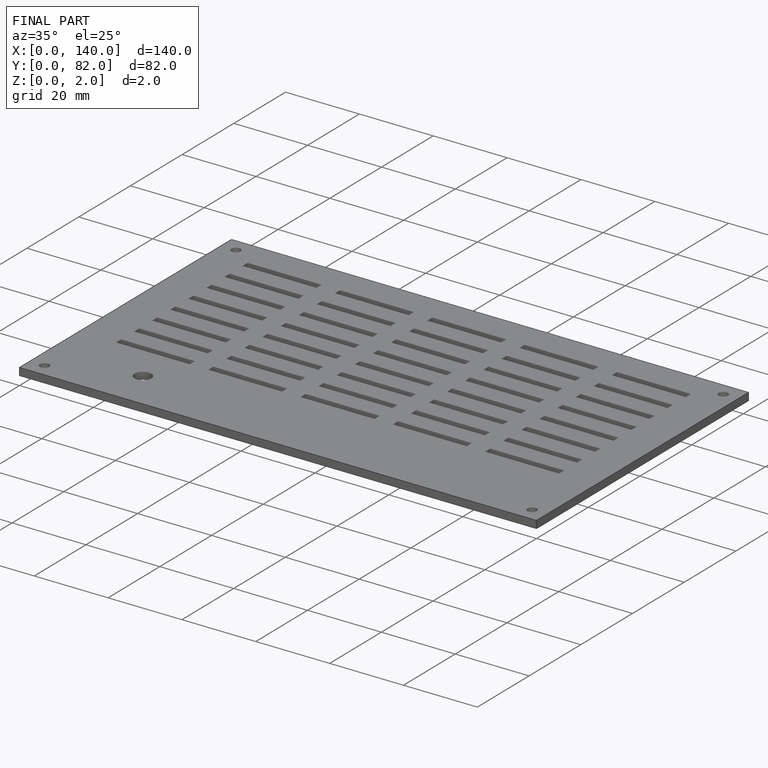
[diagram: finished part — iso view with bounding-box wireframe]
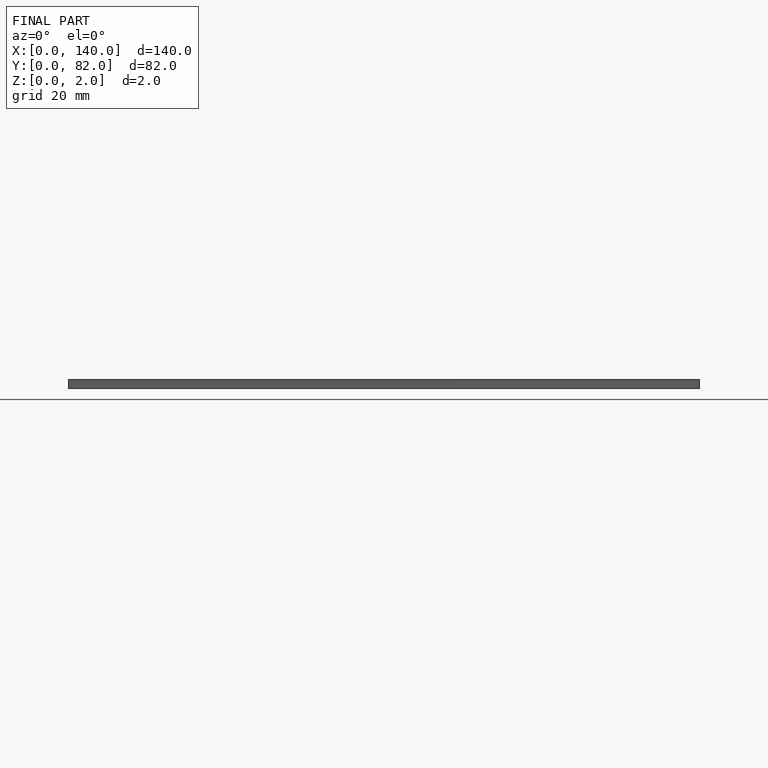
[diagram: finished part — front view with bounding-box wireframe]
